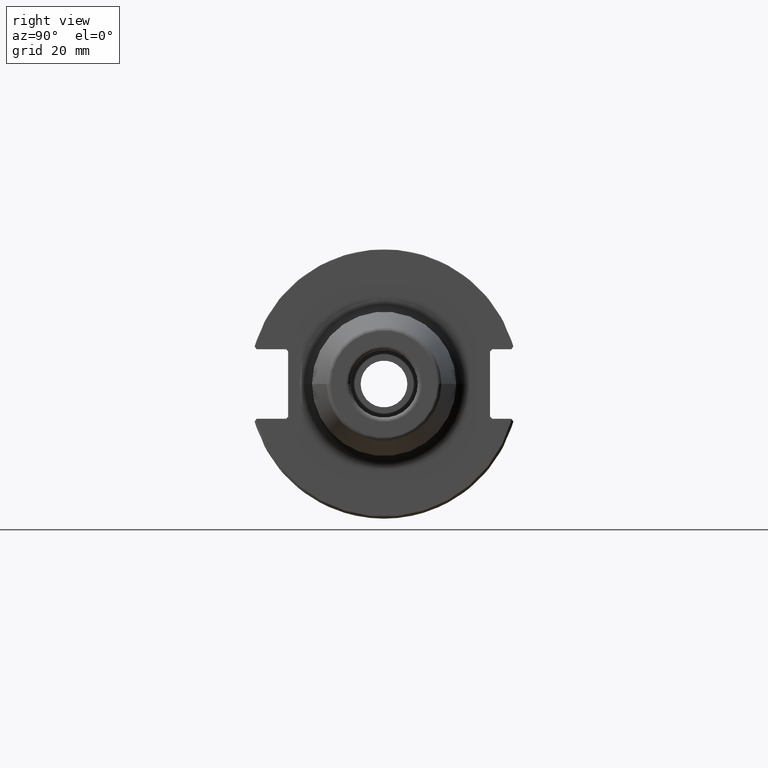
[diagram: clean part render]
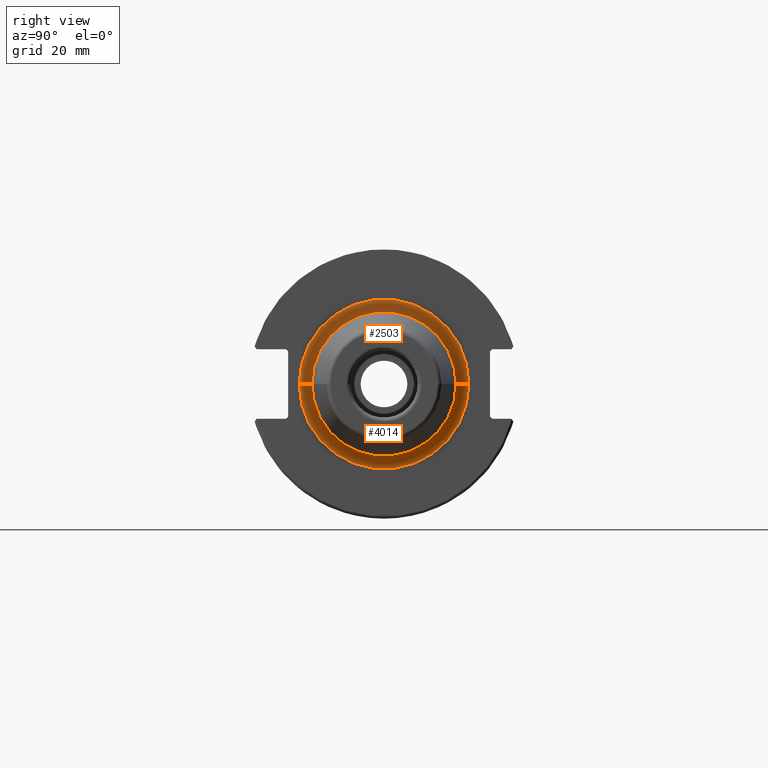
[diagram: same view with one multi-face feature highlighted, each face labeled with its STEP entity id]
A machine part, right view. The highlighted faces form ONE feature: a constant-radius fillet chain: 2 tangent blend faces with common blend radius 3 mm. The faces share edges in the B-rep.
Their STEP definitions:
[1] entity #4014 (Torus):
#260=CARTESIAN_POINT('',(2.205E1,2.000005840383E1,-6.241490657644E-11));
#261=DIRECTION('',(0.E0,3.120736308260E-12,1.E0));
#262=DIRECTION('',(-1.E0,-6.809367884368E-13,0.E0));
#263=AXIS2_PLACEMENT_3D('',#260,#261,#262);
#305=CARTESIAN_POINT('',(1.905E1,0.E0,0.E0));
#306=DIRECTION('',(1.E0,0.E0,0.E0));
#307=DIRECTION('',(0.E0,-1.E0,0.E0));
#308=AXIS2_PLACEMENT_3D('',#305,#306,#307);
#1703=CARTESIAN_POINT('',(2.205E1,-2.000005840383E1,6.241224204118E-11));
#1704=DIRECTION('',(0.E0,-3.120604469276E-12,-1.E0));
#1705=DIRECTION('',(-1.E0,6.809367884368E-13,0.E0));
#1706=AXIS2_PLACEMENT_3D('',#1703,#1704,#1705);
#1708=CARTESIAN_POINT('',(2.205E1,0.E0,0.E0));
#1709=DIRECTION('',(1.E0,0.E0,0.E0));
#1710=DIRECTION('',(0.E0,-1.E0,0.E0));
#1711=AXIS2_PLACEMENT_3D('',#1708,#1709,#1710);
#2067=CARTESIAN_POINT('',(1.905E1,-2.000005840383E1,0.E0));
#2068=CARTESIAN_POINT('',(1.905E1,2.000005840383E1,0.E0));
#2069=VERTEX_POINT('',#2067);
#2070=VERTEX_POINT('',#2068);
#2071=CARTESIAN_POINT('',(2.205E1,-1.700005840383E1,0.E0));
#2072=CARTESIAN_POINT('',(2.205E1,1.700005840383E1,0.E0));
#2073=VERTEX_POINT('',#2071);
#2074=VERTEX_POINT('',#2072);
#4002=CARTESIAN_POINT('',(2.205E1,0.E0,0.E0));
#4003=DIRECTION('',(1.E0,0.E0,0.E0));
#4004=DIRECTION('',(0.E0,-9.998776926979E-1,1.563968174334E-2));
#4005=AXIS2_PLACEMENT_3D('',#4002,#4003,#4004);
#4006=TOROIDAL_SURFACE('',#4005,2.000005840383E1,3.E0);
#4007=ORIENTED_EDGE('',*,*,#2543,.F.);
#4008=ORIENTED_EDGE('',*,*,#2499,.T.);
#4010=ORIENTED_EDGE('',*,*,#4009,.T.);
#4011=ORIENTED_EDGE('',*,*,#2496,.F.);
#4012=EDGE_LOOP('',(#4007,#4008,#4010,#4011));
#4013=FACE_OUTER_BOUND('',#4012,.F.);
#4014=ADVANCED_FACE('',(#4013),#4006,.F.);
#264=CIRCLE('',#263,3.E0);
#309=CIRCLE('',#308,2.000005840383E1);
#1707=CIRCLE('',#1706,3.E0);
#1712=CIRCLE('',#1711,1.700005840383E1);
#2496=EDGE_CURVE('',#2070,#2074,#264,.T.);
#2499=EDGE_CURVE('',#2069,#2073,#1707,.T.);
#2543=EDGE_CURVE('',#2069,#2070,#309,.T.);
#4009=EDGE_CURVE('',#2073,#2074,#1712,.T.);
[2] entity #2503 (Torus):
#250=CARTESIAN_POINT('',(2.205E1,0.E0,0.E0));
#251=DIRECTION('',(1.E0,0.E0,0.E0));
#252=DIRECTION('',(0.E0,1.E0,0.E0));
#253=AXIS2_PLACEMENT_3D('',#250,#251,#252);
#260=CARTESIAN_POINT('',(2.205E1,2.000005840383E1,-6.241490657644E-11));
#261=DIRECTION('',(0.E0,3.120736308260E-12,1.E0));
#262=DIRECTION('',(-1.E0,-6.809367884368E-13,0.E0));
#263=AXIS2_PLACEMENT_3D('',#260,#261,#262);
#310=CARTESIAN_POINT('',(1.905E1,0.E0,0.E0));
#311=DIRECTION('',(1.E0,0.E0,0.E0));
#312=DIRECTION('',(0.E0,1.E0,0.E0));
#313=AXIS2_PLACEMENT_3D('',#310,#311,#312);
#1703=CARTESIAN_POINT('',(2.205E1,-2.000005840383E1,6.241224204118E-11));
#1704=DIRECTION('',(0.E0,-3.120604469276E-12,-1.E0));
#1705=DIRECTION('',(-1.E0,6.809367884368E-13,0.E0));
#1706=AXIS2_PLACEMENT_3D('',#1703,#1704,#1705);
#2067=CARTESIAN_POINT('',(1.905E1,-2.000005840383E1,0.E0));
#2068=CARTESIAN_POINT('',(1.905E1,2.000005840383E1,0.E0));
#2069=VERTEX_POINT('',#2067);
#2070=VERTEX_POINT('',#2068);
#2071=CARTESIAN_POINT('',(2.205E1,-1.700005840383E1,0.E0));
#2072=CARTESIAN_POINT('',(2.205E1,1.700005840383E1,0.E0));
#2073=VERTEX_POINT('',#2071);
#2074=VERTEX_POINT('',#2072);
#2489=CARTESIAN_POINT('',(2.205E1,0.E0,0.E0));
#2490=DIRECTION('',(1.E0,0.E0,0.E0));
#2491=DIRECTION('',(0.E0,9.998776926979E-1,-1.563968174334E-2));
#2492=AXIS2_PLACEMENT_3D('',#2489,#2490,#2491);
#2493=TOROIDAL_SURFACE('',#2492,2.000005840383E1,3.E0);
#2495=ORIENTED_EDGE('',*,*,#2494,.F.);
#2497=ORIENTED_EDGE('',*,*,#2496,.T.);
#2498=ORIENTED_EDGE('',*,*,#2479,.T.);
#2500=ORIENTED_EDGE('',*,*,#2499,.F.);
#2501=EDGE_LOOP('',(#2495,#2497,#2498,#2500));
#2502=FACE_OUTER_BOUND('',#2501,.F.);
#2503=ADVANCED_FACE('',(#2502),#2493,.F.);
#254=CIRCLE('',#253,1.700005840383E1);
#264=CIRCLE('',#263,3.E0);
#314=CIRCLE('',#313,2.000005840383E1);
#1707=CIRCLE('',#1706,3.E0);
#2479=EDGE_CURVE('',#2074,#2073,#254,.T.);
#2494=EDGE_CURVE('',#2070,#2069,#314,.T.);
#2496=EDGE_CURVE('',#2070,#2074,#264,.T.);
#2499=EDGE_CURVE('',#2069,#2073,#1707,.T.);